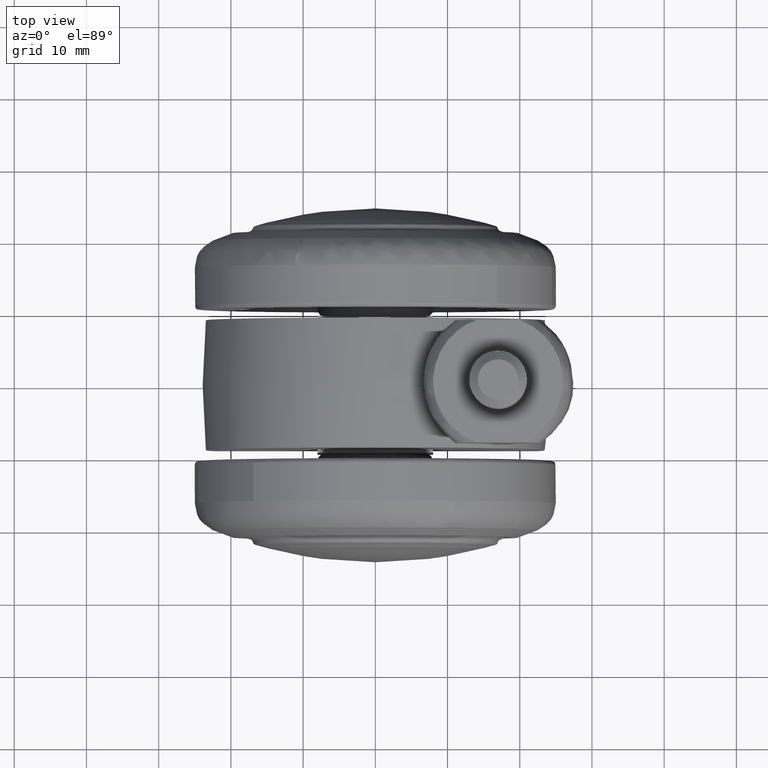
[diagram: clean part render]
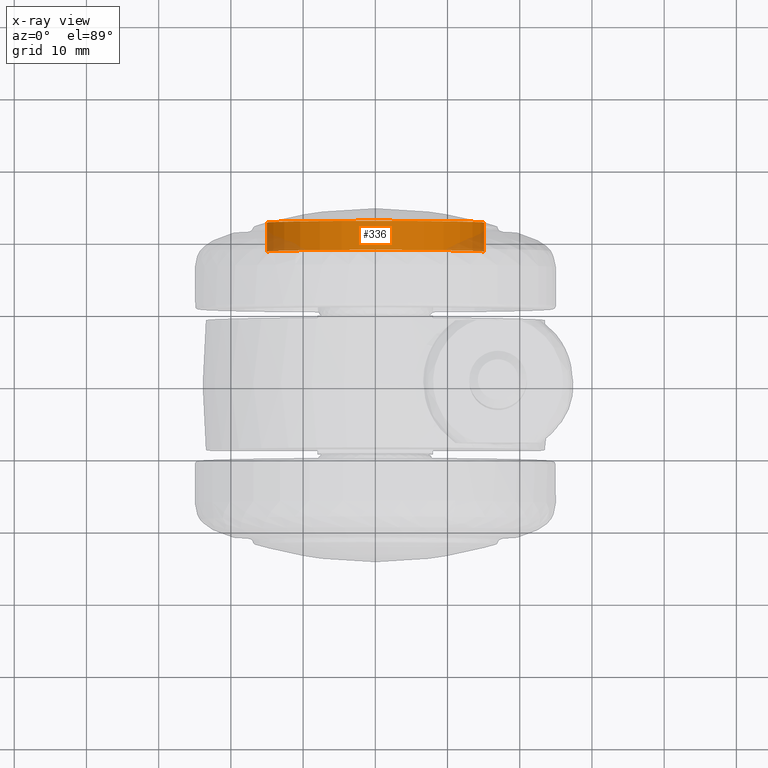
[diagram: x-ray — body ghosted, one internal face saturated and labeled with its STEP entity id]
A machine part, top view, then the same camera in x-ray: the body is ghosted and one INTERNAL B-rep face — a face not visible from any outside direction — is saturated and labeled: STEP entity #336.
In plain terms, the highlighted face is a freeform B-spline surface patch.
Its self-contained STEP definition (entity closure, byte-faithful):
#230=CARTESIAN_POINT('',(14.967995900637515,-18.399675665869992,-2.004820726654235));
#231=CARTESIAN_POINT('',(14.981257158576101,-18.399675665869992,-1.893255166858183));
#232=CARTESIAN_POINT('',(15.045452993273949,-18.399675665869989,-1.353182402433461));
#233=CARTESIAN_POINT('',(15.071835456170190,-18.399675665869989,-0.921832946976339));
#234=CARTESIAN_POINT('',(15.993668403146525,-18.399675665869982,14.150002509193843));
#235=CARTESIAN_POINT('',(0.921832946976341,-18.399675665869989,15.071835456170190));
#236=CARTESIAN_POINT('',(-14.150002509193843,-18.399675665869982,15.993668403146525));
#237=CARTESIAN_POINT('',(-15.078465112423411,-18.399675665869985,0.813439025379945));
#238=CARTESIAN_POINT('',(-15.085055387173542,-18.399675665869985,0.705688985667463));
#239=CARTESIAN_POINT('',(14.967995900637515,-22.615805807683664,-2.004820726654235));
#240=CARTESIAN_POINT('',(14.981257158576101,-22.615805807683667,-1.893255166858183));
#241=CARTESIAN_POINT('',(15.045452993273949,-22.615805807683667,-1.353182402433461));
#242=CARTESIAN_POINT('',(15.071835456170190,-22.615805807683660,-0.921832946976339));
#243=CARTESIAN_POINT('',(15.993668403146525,-22.615805807683657,14.150002509193843));
#244=CARTESIAN_POINT('',(0.921832946976341,-22.615805807683660,15.071835456170190));
#245=CARTESIAN_POINT('',(-14.150002509193843,-22.615805807683657,15.993668403146525));
#246=CARTESIAN_POINT('',(-15.078465112423411,-22.615805807683660,0.813439025379945));
#247=CARTESIAN_POINT('',(-15.085055387173542,-22.615805807683657,0.705688985667463));
#255=(BOUNDED_SURFACE()B_SPLINE_SURFACE(2,1,((#230,#239),(#231,#240),(#232,#241),(#233,#242),(#234,#243),(#235,#244),(#236,#245),(#237,#246),(#238,#247)),.UNSPECIFIED.,.F.,.F.,.U.)B_SPLINE_SURFACE_WITH_KNOTS((3,1,2,2,1,3),(2,2),(0.0,0.255166522401860,1.255906489095259,26.274405656430201,51.292904823765127,51.548122475247247),(0.0,4.216130141813682),.UNSPECIFIED.)GEOMETRIC_REPRESENTATION_ITEM()RATIONAL_B_SPLINE_SURFACE(((0.972009258409154,0.972009258409154),(0.974757529602140,0.974757529602140),(0.988284271247462,0.988284271247462),(1.0,1.0),(0.707106781186548,0.707106781186548),(1.0,1.0),(0.707106781186548,0.707106781186548),(1.002987849868237,1.002987849868237),(1.005975699736474,1.005975699736474)))REPRESENTATION_ITEM('')SURFACE());
#256=CARTESIAN_POINT('',(14.994446163732830,-18.500000000000469,-1.782297461854455));
#257=VERTEX_POINT('',#256);
#258=CARTESIAN_POINT('',(0.0,-18.500000000000000,15.100000000000000));
#259=VERTEX_POINT('',#258);
#260=CARTESIAN_POINT('',(14.994446163732837,-18.500000000000462,-1.782297461854455));
#261=CARTESIAN_POINT('',(15.100000000000003,-18.500000000000000,-0.894274363036674));
#262=CARTESIAN_POINT('',(15.100000000000000,-18.500000000000000,1.789254E-015));
#263=CARTESIAN_POINT('',(15.100000000000005,-18.500000000000004,15.100000000000005));
#264=CARTESIAN_POINT('',(0.0,-18.500000000000000,15.100000000000000));
#272=(BOUNDED_CURVE()B_SPLINE_CURVE(2,(#260,#261,#262,#263,#264),.UNSPECIFIED.,.F.,.U.)B_SPLINE_CURVE_WITH_KNOTS((3,2,3),(0.229562693092360,0.250000000000000,0.500000000000000),.UNSPECIFIED.)CURVE()GEOMETRIC_REPRESENTATION_ITEM()RATIONAL_B_SPLINE_CURVE((0.956027184567686,0.976056205583771,1.0,0.707106781186547,1.0))REPRESENTATION_ITEM(''));
#273=EDGE_CURVE('',#257,#259,#272,.T.);
#274=ORIENTED_EDGE('',*,*,#273,.F.);
#275=CARTESIAN_POINT('',(14.994446135850531,-22.512973365200398,-1.782297696430476));
#276=VERTEX_POINT('',#275);
#277=CARTESIAN_POINT('',(14.994446163732830,-18.500000000000469,-1.782297461854455));
#278=CARTESIAN_POINT('',(14.994446135850531,-22.512973365200398,-1.782297696430476));
#279=QUASI_UNIFORM_CURVE('',1,(#277,#278),.UNSPECIFIED.,.F.,.U.);
#280=EDGE_CURVE('',#257,#276,#279,.T.);
#281=ORIENTED_EDGE('',*,*,#280,.T.);
#282=CARTESIAN_POINT('',(0.0,-22.512973365200398,15.100000000000000));
#283=VERTEX_POINT('',#282);
#284=CARTESIAN_POINT('',(14.994446135850534,-22.512973365200398,-1.782297696430475));
#285=CARTESIAN_POINT('',(15.099999999999998,-22.512973365200395,-0.894274481564592));
#286=CARTESIAN_POINT('',(15.100000000000000,-22.512973365200398,1.789254E-015));
#287=CARTESIAN_POINT('',(15.100000000000005,-22.512973365200398,15.100000000000005));
#288=CARTESIAN_POINT('',(0.0,-22.512973365200398,15.100000000000000));
#296=(BOUNDED_CURVE()B_SPLINE_CURVE(2,(#284,#285,#286,#287,#288),.UNSPECIFIED.,.F.,.U.)B_SPLINE_CURVE_WITH_KNOTS((3,2,3),(0.229562690448439,0.250000000000000,0.500000000000000),.UNSPECIFIED.)CURVE()GEOMETRIC_REPRESENTATION_ITEM()RATIONAL_B_SPLINE_CURVE((0.956027179385483,0.976056202486226,1.0,0.707106781186547,1.0))REPRESENTATION_ITEM(''));
#297=EDGE_CURVE('',#276,#283,#296,.T.);
#298=ORIENTED_EDGE('',*,*,#297,.T.);
#299=CARTESIAN_POINT('',(-15.071836945563520,-22.512973365200398,0.921808594965005));
#300=VERTEX_POINT('',#299);
#301=CARTESIAN_POINT('',(0.0,-22.512973365200398,15.100000000000000));
#302=CARTESIAN_POINT('',(-14.204684604072089,-22.512973365200398,15.100000000000003));
#303=CARTESIAN_POINT('',(-15.071836945563517,-22.512973365200402,0.921808594965005));
#311=(BOUNDED_CURVE()B_SPLINE_CURVE(2,(#301,#302,#303),.UNSPECIFIED.,.F.,.U.)B_SPLINE_CURVE_WITH_KNOTS((3,3),(0.500000000000000,0.739333241030990),.UNSPECIFIED.)CURVE()GEOMETRIC_REPRESENTATION_ITEM()RATIONAL_B_SPLINE_CURVE((1.0,0.719603666661510,0.976072639171872))REPRESENTATION_ITEM(''));
#312=EDGE_CURVE('',#283,#300,#311,.T.);
#313=ORIENTED_EDGE('',*,*,#312,.T.);
#314=CARTESIAN_POINT('',(-15.071836963724120,-18.500000000000131,0.921808298025991));
#315=VERTEX_POINT('',#314);
#316=CARTESIAN_POINT('',(-15.071836963724120,-18.500000000000131,0.921808298025991));
#317=CARTESIAN_POINT('',(-15.071836945563520,-22.512973365200398,0.921808594965005));
#318=QUASI_UNIFORM_CURVE('',1,(#316,#317),.UNSPECIFIED.,.F.,.U.);
#319=EDGE_CURVE('',#315,#300,#318,.T.);
#320=ORIENTED_EDGE('',*,*,#319,.F.);
#321=CARTESIAN_POINT('',(0.0,-18.500000000000000,15.100000000000000));
#322=CARTESIAN_POINT('',(-14.204684884449739,-18.500000000000000,15.099999999999998));
#323=CARTESIAN_POINT('',(-15.071836963724117,-18.500000000000128,0.921808298025991));
#331=(BOUNDED_CURVE()B_SPLINE_CURVE(2,(#321,#322,#323),.UNSPECIFIED.,.F.,.U.)B_SPLINE_CURVE_WITH_KNOTS((3,3),(0.500000000000000,0.739333244430436),.UNSPECIFIED.)CURVE()GEOMETRIC_REPRESENTATION_ITEM()RATIONAL_B_SPLINE_CURVE((1.0,0.719603662678811,0.976072646457550))REPRESENTATION_ITEM(''));
#332=EDGE_CURVE('',#259,#315,#331,.T.);
#333=ORIENTED_EDGE('',*,*,#332,.F.);
#334=EDGE_LOOP('',(#274,#281,#298,#313,#320,#333));
#335=FACE_OUTER_BOUND('',#334,.T.);
#336=ADVANCED_FACE('',(#335),#255,.F.);